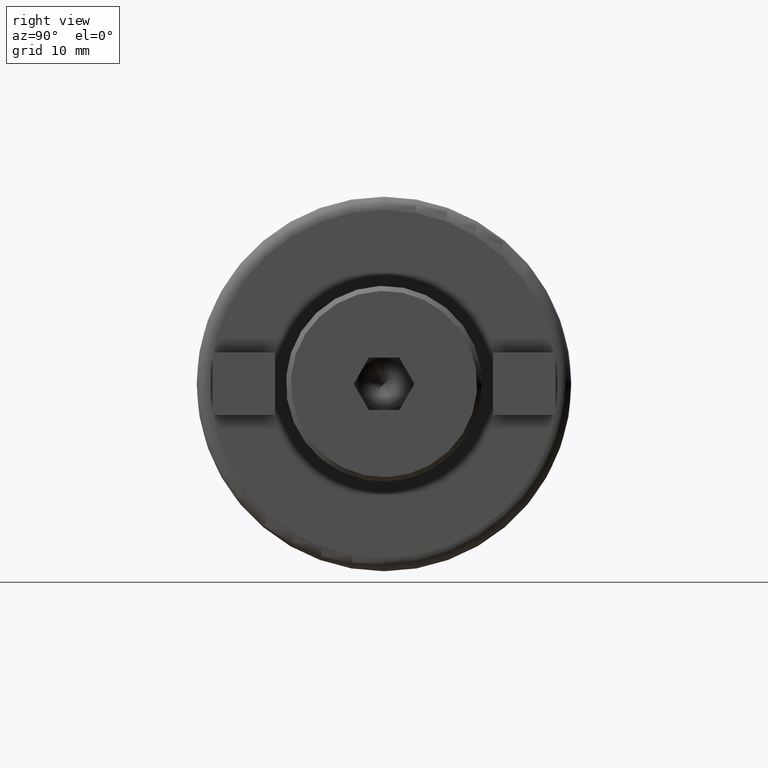
[diagram: clean part render]
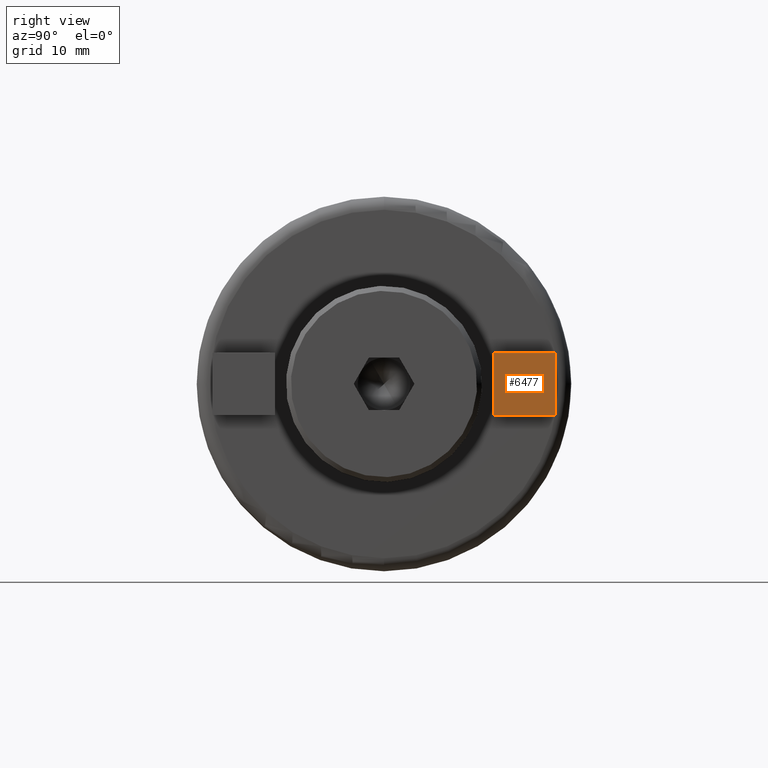
[diagram: same view with one face highlighted and labeled with its STEP entity id]
A machine part, right view. The second image highlights one B-rep face of the part: STEP entity #6477.
In plain terms, the highlighted planar face has unit normal (1, 0, 0).
Its self-contained STEP definition (entity closure, byte-faithful):
#132 = CARTESIAN_POINT ( 'NONE',  ( 4.902199999999995200, 4.762499999999999300, -4.762500000000000200 ) ) ;
#170 = EDGE_LOOP ( 'NONE', ( #4184, #696, #6097, #5396 ) ) ;
#329 = CARTESIAN_POINT ( 'NONE',  ( 4.902199999999995200, -4.762499999999999300, -4.762499999999993100 ) ) ;
#624 = LINE ( 'NONE', #5281, #6892 ) ;
#696 = ORIENTED_EDGE ( 'NONE', *, *, #3897, .T. ) ;
#750 = EDGE_CURVE ( 'NONE', #5201, #1462, #6761, .T. ) ;
#850 = DIRECTION ( 'NONE',  ( 0.0000000000000000000, -9.106159978880860100E-017, -1.000000000000000000 ) ) ;
#1024 = VECTOR ( 'NONE', #850, 1000.000000000000000 ) ;
#1462 = VERTEX_POINT ( 'NONE', #132 ) ;
#1712 = CARTESIAN_POINT ( 'NONE',  ( 4.902199999999995200, 4.762499999999999300, 4.762500000000000200 ) ) ;
#1895 = CARTESIAN_POINT ( 'NONE',  ( 4.902199999999995200, -4.762499999999999300, 4.762500000000007300 ) ) ;
#2332 = VERTEX_POINT ( 'NONE', #6010 ) ;
#2413 = PLANE ( 'NONE',  #7195 ) ;
#2895 = DIRECTION ( 'NONE',  ( 0.0000000000000000000, 0.0000000000000000000, 1.000000000000000000 ) ) ;
#2993 = CARTESIAN_POINT ( 'NONE',  ( 4.902199999999995200, 4.762499999999999300, 4.762500000000000200 ) ) ;
#3581 = DIRECTION ( 'NONE',  ( 0.0000000000000000000, 0.0000000000000000000, -1.000000000000000000 ) ) ;
#3591 = FACE_OUTER_BOUND ( 'NONE', #170, .T. ) ;
#3897 = EDGE_CURVE ( 'NONE', #4205, #5201, #7475, .T. ) ;
#3957 = LINE ( 'NONE', #1712, #7652 ) ;
#4153 = DIRECTION ( 'NONE',  ( 0.0000000000000000000, -1.000000000000000000, 0.0000000000000000000 ) ) ;
#4184 = ORIENTED_EDGE ( 'NONE', *, *, #7802, .T. ) ;
#4205 = VERTEX_POINT ( 'NONE', #1895 ) ;
#4924 = CARTESIAN_POINT ( 'NONE',  ( 4.902199999999995200, 4.762499999999999300, -4.762500000000000200 ) ) ;
#5201 = VERTEX_POINT ( 'NONE', #329 ) ;
#5281 = CARTESIAN_POINT ( 'NONE',  ( 4.902199999999995200, 4.762499999999999300, 4.762500000000000200 ) ) ;
#5396 = ORIENTED_EDGE ( 'NONE', *, *, #7841, .T. ) ;
#5545 = DIRECTION ( 'NONE',  ( 0.0000000000000000000, 1.000000000000000000, 0.0000000000000000000 ) ) ;
#5632 = VECTOR ( 'NONE', #5545, 1000.000000000000000 ) ;
#6010 = CARTESIAN_POINT ( 'NONE',  ( 4.902199999999995200, 4.762499999999999300, 4.762500000000000200 ) ) ;
#6097 = ORIENTED_EDGE ( 'NONE', *, *, #750, .T. ) ;
#6477 = ADVANCED_FACE ( 'NONE', ( #3591 ), #2413, .T. ) ;
#6761 = LINE ( 'NONE', #4924, #5632 ) ;
#6892 = VECTOR ( 'NONE', #4153, 1000.000000000000000 ) ;
#6894 = CARTESIAN_POINT ( 'NONE',  ( 4.902199999999995200, -4.762499999999999300, 4.762500000000007300 ) ) ;
#7195 = AXIS2_PLACEMENT_3D ( 'NONE', #2993, #7222, #3581 ) ;
#7222 = DIRECTION ( 'NONE',  ( 1.000000000000000000, 0.0000000000000000000, 0.0000000000000000000 ) ) ;
#7475 = LINE ( 'NONE', #6894, #1024 ) ;
#7652 = VECTOR ( 'NONE', #2895, 1000.000000000000000 ) ;
#7802 = EDGE_CURVE ( 'NONE', #2332, #4205, #624, .T. ) ;
#7841 = EDGE_CURVE ( 'NONE', #1462, #2332, #3957, .T. ) ;